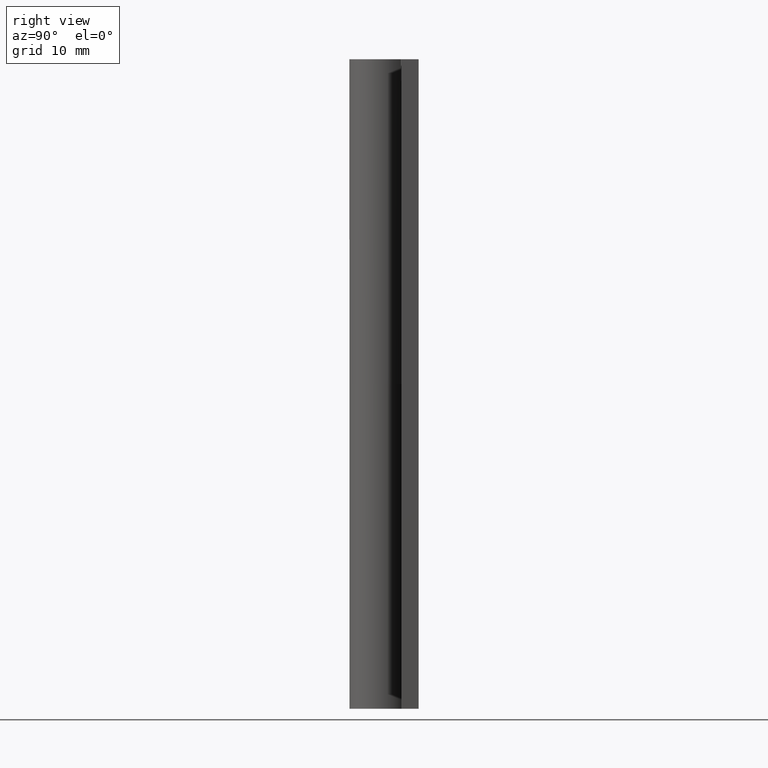
[diagram: clean part render]
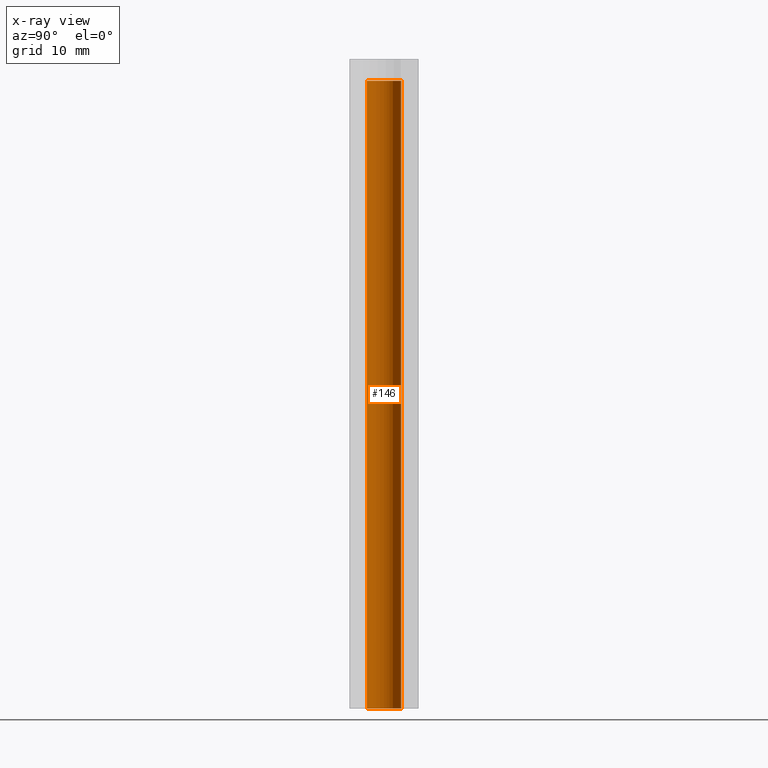
[diagram: x-ray — body ghosted, one internal face saturated and labeled with its STEP entity id]
A machine part, right view, then the same camera in x-ray: the body is ghosted and one INTERNAL B-rep face — a face not visible from any outside direction — is saturated and labeled: STEP entity #146.
In plain terms, the highlighted face is a freeform B-spline surface patch.
Its self-contained STEP definition (entity closure, byte-faithful):
#44=CARTESIAN_POINT('',(-0.236068450853648,1.986018897426408,74.312505345657172));
#45=CARTESIAN_POINT('',(-0.179229443260732,1.992775075067972,74.312505345657172));
#46=CARTESIAN_POINT('',(-0.122097069522077,1.996269440741245,74.312505345657186));
#47=CARTESIAN_POINT('',(1.874172371219168,2.118366510263322,74.312505345657200));
#48=CARTESIAN_POINT('',(1.996269440741245,0.122097069522077,74.312505345657186));
#49=CARTESIAN_POINT('',(2.118366510263322,-1.874172371219168,74.312505345657200));
#50=CARTESIAN_POINT('',(0.122097069522077,-1.996269440741245,74.312505345657186));
#51=CARTESIAN_POINT('',(-0.236068450853648,1.986018897426408,-1.857812633641431));
#52=CARTESIAN_POINT('',(-0.179229443260732,1.992775075067972,-1.857812633641431));
#53=CARTESIAN_POINT('',(-0.122097069522077,1.996269440741245,-1.857812633641430));
#54=CARTESIAN_POINT('',(1.874172371219168,2.118366510263322,-1.857812633641430));
#55=CARTESIAN_POINT('',(1.996269440741245,0.122097069522077,-1.857812633641430));
#56=CARTESIAN_POINT('',(2.118366510263322,-1.874172371219168,-1.857812633641430));
#57=CARTESIAN_POINT('',(0.122097069522077,-1.996269440741245,-1.857812633641430));
#65=(BOUNDED_SURFACE()B_SPLINE_SURFACE(2,1,((#44,#51),(#45,#52),(#46,#53),(#47,#54),(#48,#55),(#49,#56),(#50,#57)),.UNSPECIFIED.,.F.,.F.,.U.)B_SPLINE_SURFACE_WITH_KNOTS((3,2,2,3),(2,2),(0.0,0.132548329594495,3.446256569456868,6.759964809319241),(0.0,76.170317979298630),.UNSPECIFIED.)GEOMETRIC_REPRESENTATION_ITEM()RATIONAL_B_SPLINE_SURFACE(((0.977505800795127,0.977505800795127),(0.988284271247462,0.988284271247462),(1.0,1.0),(0.707106781186548,0.707106781186548),(1.0,1.0),(0.707106781186548,0.707106781186548),(1.0,1.0)))REPRESENTATION_ITEM('')SURFACE());
#66=CARTESIAN_POINT('',(-0.236065875495914,1.986019124795656,72.500005215275309));
#67=VERTEX_POINT('',#66);
#68=CARTESIAN_POINT('',(1.999999687211385,0.0,72.500005215275294));
#69=VERTEX_POINT('',#68);
#70=CARTESIAN_POINT('',(-0.236065875495914,1.986019124795656,72.500005215275309));
#71=CARTESIAN_POINT('',(-0.118446924151209,1.999999687211386,72.500005215275294));
#72=CARTESIAN_POINT('',(0.0,1.999999687211385,72.500005215275294));
#73=CARTESIAN_POINT('',(1.999999687211385,1.999999687211385,72.500005215275309));
#74=CARTESIAN_POINT('',(1.999999687211385,0.0,72.500005215275294));
#82=(BOUNDED_CURVE()B_SPLINE_CURVE(2,(#70,#71,#72,#73,#74),.UNSPECIFIED.,.F.,.U.)B_SPLINE_CURVE_WITH_KNOTS((3,2,3),(0.229562691884152,0.250000000000000,0.500000000000000),.UNSPECIFIED.)CURVE()GEOMETRIC_REPRESENTATION_ITEM()RATIONAL_B_SPLINE_CURVE((0.956027182199545,0.976056204168268,1.0,0.707106781186547,1.0))REPRESENTATION_ITEM(''));
#83=EDGE_CURVE('',#67,#69,#82,.T.);
#84=ORIENTED_EDGE('',*,*,#83,.T.);
#85=CARTESIAN_POINT('',(0.122097065094366,-1.996269362668719,72.500005215275280));
#86=VERTEX_POINT('',#85);
#87=CARTESIAN_POINT('',(1.999999687211385,0.0,72.500005215275294));
#88=CARTESIAN_POINT('',(1.999999687211385,-1.881411838915614,72.500005215275309));
#89=CARTESIAN_POINT('',(0.122097065094366,-1.996269362668719,72.500005215275280));
#97=(BOUNDED_CURVE()B_SPLINE_CURVE(2,(#87,#88,#89),.UNSPECIFIED.,.F.,.U.)B_SPLINE_CURVE_WITH_KNOTS((3,3),(0.500000000000000,0.739332962182135),.UNSPECIFIED.)CURVE()GEOMETRIC_REPRESENTATION_ITEM()RATIONAL_B_SPLINE_CURVE((1.0,0.719603993353265,0.976072041544968))REPRESENTATION_ITEM(''));
#98=EDGE_CURVE('',#69,#86,#97,.T.);
#99=ORIENTED_EDGE('',*,*,#98,.T.);
#100=CARTESIAN_POINT('',(0.122097074642030,-1.996269518771432,6.661338E-016));
#101=VERTEX_POINT('',#100);
#102=CARTESIAN_POINT('',(0.122097065094366,-1.996269362668719,72.500005215275280));
#103=CARTESIAN_POINT('',(0.122097074642030,-1.996269518771432,6.661338E-016));
#104=QUASI_UNIFORM_CURVE('',1,(#102,#103),.UNSPECIFIED.,.F.,.U.);
#105=EDGE_CURVE('',#86,#101,#104,.T.);
#106=ORIENTED_EDGE('',*,*,#105,.T.);
#107=CARTESIAN_POINT('',(2.000000000000225,0.0,0.0));
#108=VERTEX_POINT('',#107);
#109=CARTESIAN_POINT('',(2.000000000000225,0.0,0.0));
#110=CARTESIAN_POINT('',(2.000000000000225,-1.881412133157949,0.0));
#111=CARTESIAN_POINT('',(0.122097074642030,-1.996269518771432,6.661338E-016));
#119=(BOUNDED_CURVE()B_SPLINE_CURVE(2,(#109,#110,#111),.UNSPECIFIED.,.F.,.U.)B_SPLINE_CURVE_WITH_KNOTS((3,3),(0.500000000000000,0.739332962182133),.UNSPECIFIED.)CURVE()GEOMETRIC_REPRESENTATION_ITEM()RATIONAL_B_SPLINE_CURVE((1.0,0.719603993353267,0.976072041544963))REPRESENTATION_ITEM(''));
#120=EDGE_CURVE('',#108,#101,#119,.T.);
#121=ORIENTED_EDGE('',*,*,#120,.F.);
#122=CARTESIAN_POINT('',(-0.236065926512480,1.986019276227036,6.814628E-016));
#123=VERTEX_POINT('',#122);
#124=CARTESIAN_POINT('',(-0.236065926512480,1.986019276227036,6.814628E-016));
#125=CARTESIAN_POINT('',(-0.118446959126173,2.000000000000226,0.0));
#126=CARTESIAN_POINT('',(0.0,2.000000000000225,0.0));
#127=CARTESIAN_POINT('',(2.000000000000225,2.000000000000225,0.0));
#128=CARTESIAN_POINT('',(2.000000000000225,0.0,0.0));
#136=(BOUNDED_CURVE()B_SPLINE_CURVE(2,(#124,#125,#126,#127,#128),.UNSPECIFIED.,.F.,.U.)B_SPLINE_CURVE_WITH_KNOTS((3,2,3),(0.229562689113676,0.250000000000000,0.500000000000000),.UNSPECIFIED.)CURVE()GEOMETRIC_REPRESENTATION_ITEM()RATIONAL_B_SPLINE_CURVE((0.956027176769288,0.976056200922454,1.0,0.707106781186548,1.0))REPRESENTATION_ITEM(''));
#137=EDGE_CURVE('',#123,#108,#136,.T.);
#138=ORIENTED_EDGE('',*,*,#137,.F.);
#139=CARTESIAN_POINT('',(-0.236065875495914,1.986019124795656,72.500005215275309));
#140=CARTESIAN_POINT('',(-0.236065926512480,1.986019276227036,6.814628E-016));
#141=QUASI_UNIFORM_CURVE('',1,(#139,#140),.UNSPECIFIED.,.F.,.U.);
#142=EDGE_CURVE('',#67,#123,#141,.T.);
#143=ORIENTED_EDGE('',*,*,#142,.F.);
#144=EDGE_LOOP('',(#84,#99,#106,#121,#138,#143));
#145=FACE_OUTER_BOUND('',#144,.T.);
#146=ADVANCED_FACE('',(#145),#65,.T.);